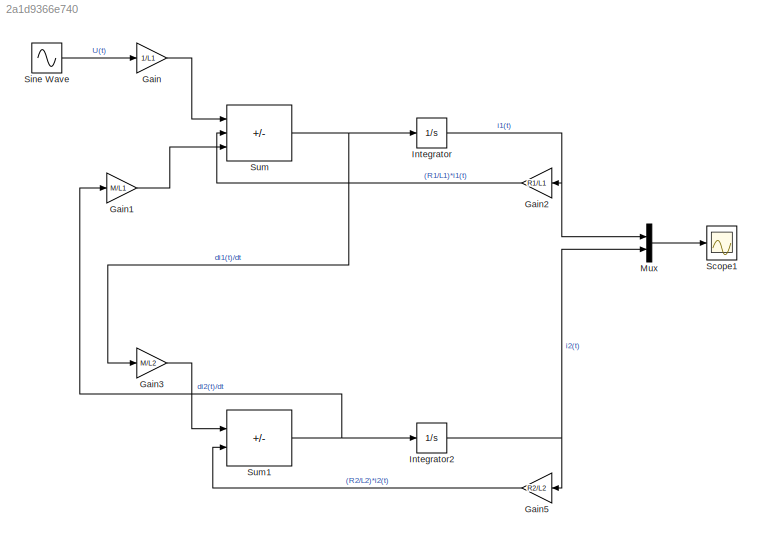
MODEL slx_2a1d9366e740
KIND model
CONFIG AbsTol = auto
CONFIG EnableMultiTasking = off
CONFIG FixedStep = StepSize
CONFIG MaxStep = auto
CONFIG MinStep = auto
CONFIG RelTol = 1e-3
CONFIG SampleTimeConstraint = Unconstrained
CONFIG SolverName = ode4
CONFIG StartTime = 0.0
CONFIG StopTime = 10.0
BLOCK [Gain] Gain
  Gain = 1/L1
BLOCK [Gain] Gain1
  Gain = M/L1
BLOCK [Gain] Gain2
  Gain = R1/L1
  NameLocation = top
BLOCK [Gain] Gain3
  Gain = M/L2
BLOCK [Gain] Gain5
  Gain = R2/L2
  NameLocation = top
BLOCK [Integrator] Integrator
BLOCK [Integrator] Integrator2
BLOCK [Mux] Mux
  DisplayOption = bar
  Inputs = 2
BLOCK [Scope] Scope1
  Floating = off
  NameLocation = right
  NumInputPorts = 1
  ScopeSpecificationString = Simulink.scopes.TimeScopeBlockCfg('CurrentConfiguration', extmgr.ConfigurationSet(extmgr.Configuration('Core','General UI',true),extmgr.Configuration('Core','Source UI',true),extmgr.Configuration('Sources','WiredSimulink',true,'DataLogging',true,'DataLoggingVariableName','currents','DataLoggingSaveFormat','StructureWithTime'),extmgr.Configuration('Visuals','Time Domain',true,'SerializedDisplays',{...<+2188ch>
BLOCK [Sin] Sine Wave
  Amplitude = Um
  Frequency = w
  Phase = PhaseAngle
  SampleTime = 0
BLOCK [Sum] Sum
  IconShape = rectangular
  Inputs = +--
BLOCK [Sum] Sum1
  IconShape = rectangular
  Inputs = --
LINE Gain1:1 -> Sum:3
LINE Gain2:1 -> Sum:2
LINE Gain3:1 -> Sum1:1
LINE Gain5:1 -> Sum1:2
LINE Gain:1 -> Sum:1
NET Integrator2:1 -> Gain5:1, Mux:2
NET Integrator:1 -> Gain2:1, Mux:1
LINE Mux:1 -> Scope1:1
LINE Sine Wave:1 -> Gain:1
NET Sum1:1 -> Gain1:1, Integrator2:1
NET Sum:1 -> Gain3:1, Integrator:1
note: NET lines group one-source signal fan-out (src -> all destinations, sorted); 1:1 wires keep LINE
